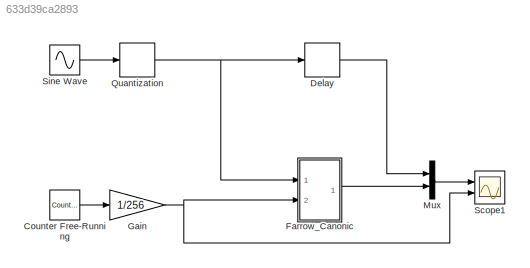
MODEL slx_633d39ca2893
KIND model
CONFIG AbsTol = auto
CONFIG EnableMultiTasking = off
CONFIG FixedStep = auto
CONFIG MaxStep = auto
CONFIG MinStep = auto
CONFIG RelTol = 1e-3
CONFIG SampleTimeConstraint = Unconstrained
CONFIG SolverName = VariableStepAuto
CONFIG StartTime = 0.0
CONFIG StopTime = 0.3
BLOCK [Reference] Counter Free-Running  REF=simulink/Sources/Counter
Free-Running
  Ports = [0, 1]
  SourceBlock = simulink/Sources/Counter\nFree-Running
  SourceProductBaseCode = SL
  SourceType = Counter Free-Running
BLOCK [Delay] Delay
  DelayLength = 3
  InitialCondition = 0
  InputPortMap = u0
  Ports = [1, 1]
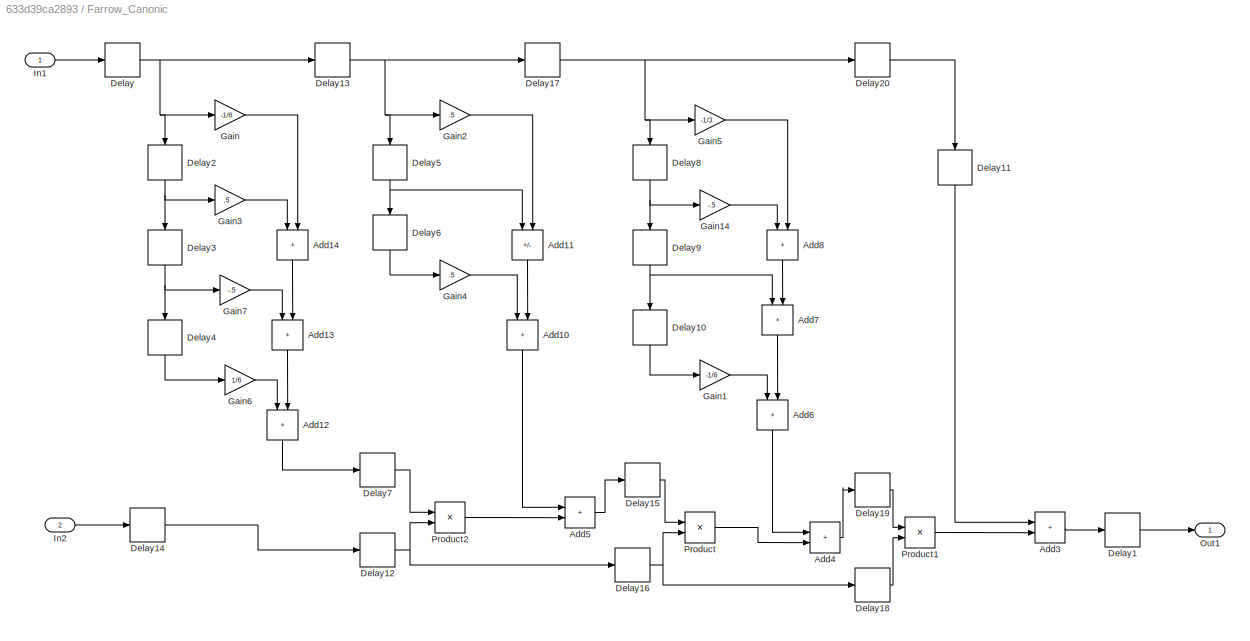
BLOCK [SubSystem] Farrow_Canonic
  Ports = [2, 1]
  RequestExecContextInheritance = off
BLOCK [Sum] Farrow_Canonic/Add10
  IconShape = rectangular
  NameLocation = left
  Ports = [2, 1]
BLOCK [Sum] Farrow_Canonic/Add11
  IconShape = rectangular
  Inputs = -+
  NameLocation = left
  Ports = [2, 1]
BLOCK [Sum] Farrow_Canonic/Add12
  IconShape = rectangular
  NameLocation = left
  OutDataTypeStr = fixdt(1,24,20)
  Ports = [2, 1]
BLOCK [Sum] Farrow_Canonic/Add13
  IconShape = rectangular
  NameLocation = left
  Ports = [2, 1]
BLOCK [Sum] Farrow_Canonic/Add14
  IconShape = rectangular
  NameLocation = left
  Ports = [2, 1]
BLOCK [Sum] Farrow_Canonic/Add3
  IconShape = rectangular
  OutDataTypeStr = fixdt(1,16,14)
  Ports = [2, 1]
  RndMeth = Round
BLOCK [Sum] Farrow_Canonic/Add4
  IconShape = rectangular
  OutDataTypeStr = Inherit: Same as first input
  Ports = [2, 1]
BLOCK [Sum] Farrow_Canonic/Add5
  IconShape = rectangular
  OutDataTypeStr = fixdt(1,24,20)
  Ports = [2, 1]
  RndMeth = Round
BLOCK [Sum] Farrow_Canonic/Add6
  IconShape = rectangular
  NameLocation = left
  OutDataTypeStr = fixdt(1,24,20)
  Ports = [2, 1]
BLOCK [Sum] Farrow_Canonic/Add7
  IconShape = rectangular
  NameLocation = left
  Ports = [2, 1]
BLOCK [Sum] Farrow_Canonic/Add8
  IconShape = rectangular
  NameLocation = left
  Ports = [2, 1]
BLOCK [Delay] Farrow_Canonic/Delay
  DelayLength = 1
  InitialCondition = 0
  InputPortMap = u0
  Ports = [1, 1]
BLOCK [Delay] Farrow_Canonic/Delay1
  DelayLength = 1
  InitialCondition = 0
  InputPortMap = u0
  Ports = [1, 1]
BLOCK [Delay] Farrow_Canonic/Delay10
  DelayLength = 1
  InitialCondition = 0
  InputPortMap = u0
  NameLocation = left
  Ports = [1, 1]
BLOCK [Delay] Farrow_Canonic/Delay11
  DelayLength = 1
  InitialCondition = 0
  InputPortMap = u0
  NameLocation = left
  Ports = [1, 1]
BLOCK [Delay] Farrow_Canonic/Delay12
  DelayLength = 1
  InitialCondition = 0
  InputPortMap = u0
  Ports = [1, 1]
BLOCK [Delay] Farrow_Canonic/Delay13
  DelayLength = 1
  InitialCondition = 0
  InputPortMap = u0
  Ports = [1, 1]
BLOCK [Delay] Farrow_Canonic/Delay14
  DelayLength = 1
  InitialCondition = 0
  InputPortMap = u0
  Ports = [1, 1]
BLOCK [Delay] Farrow_Canonic/Delay15
  DelayLength = 1
  InitialCondition = 0
  InputPortMap = u0
  Ports = [1, 1]
BLOCK [Delay] Farrow_Canonic/Delay16
  DelayLength = 1
  InitialCondition = 0
  InputPortMap = u0
  Ports = [1, 1]
BLOCK [Delay] Farrow_Canonic/Delay17
  DelayLength = 1
  InitialCondition = 0
  InputPortMap = u0
  Ports = [1, 1]
BLOCK [Delay] Farrow_Canonic/Delay18
  DelayLength = 1
  InitialCondition = 0
  InputPortMap = u0
  Ports = [1, 1]
BLOCK [Delay] Farrow_Canonic/Delay19
  DelayLength = 1
  InitialCondition = 0
  InputPortMap = u0
  Ports = [1, 1]
BLOCK [Delay] Farrow_Canonic/Delay2
  DelayLength = 1
  InitialCondition = 0
  InputPortMap = u0
  NameLocation = left
  Ports = [1, 1]
BLOCK [Delay] Farrow_Canonic/Delay20
  DelayLength = 1
  InitialCondition = 0
  InputPortMap = u0
  Ports = [1, 1]
BLOCK [Delay] Farrow_Canonic/Delay3
  DelayLength = 1
  InitialCondition = 0
  InputPortMap = u0
  NameLocation = left
  Ports = [1, 1]
BLOCK [Delay] Farrow_Canonic/Delay4
  DelayLength = 1
  InitialCondition = 0
  InputPortMap = u0
  NameLocation = left
  Ports = [1, 1]
BLOCK [Delay] Farrow_Canonic/Delay5
  DelayLength = 1
  InitialCondition = 0
  InputPortMap = u0
  NameLocation = left
  Ports = [1, 1]
BLOCK [Delay] Farrow_Canonic/Delay6
  DelayLength = 1
  InitialCondition = 0
  InputPortMap = u0
  NameLocation = left
  Ports = [1, 1]
BLOCK [Delay] Farrow_Canonic/Delay7
  DelayLength = 1
  InitialCondition = 0
  InputPortMap = u0
  Ports = [1, 1]
BLOCK [Delay] Farrow_Canonic/Delay8
  DelayLength = 1
  InitialCondition = 0
  InputPortMap = u0
  NameLocation = left
  Ports = [1, 1]
BLOCK [Delay] Farrow_Canonic/Delay9
  DelayLength = 1
  InitialCondition = 0
  InputPortMap = u0
  NameLocation = left
  Ports = [1, 1]
BLOCK [Gain] Farrow_Canonic/Gain
  Gain = -1/6
  OutDataTypeStr = fixdt(1,24,20)
  RndMeth = Round
BLOCK [Gain] Farrow_Canonic/Gain1
  Gain = -1/6
  OutDataTypeStr = fixdt(1,24,20)
  RndMeth = Round
BLOCK [Gain] Farrow_Canonic/Gain14
  Gain = -.5
  OutDataTypeStr = Inherit: Same as input
  RndMeth = Round
BLOCK [Gain] Farrow_Canonic/Gain2
  Gain = .5
  OutDataTypeStr = Inherit: Same as input
  RndMeth = Round
BLOCK [Gain] Farrow_Canonic/Gain3
  Gain = .5
  OutDataTypeStr = Inherit: Same as input
  RndMeth = Round
BLOCK [Gain] Farrow_Canonic/Gain4
  Gain = .5
  OutDataTypeStr = Inherit: Same as input
  RndMeth = Round
BLOCK [Gain] Farrow_Canonic/Gain5
  Gain = -1/3
  OutDataTypeStr = fixdt(1,24,20)
  RndMeth = Round
BLOCK [Gain] Farrow_Canonic/Gain6
  Gain = 1/6
  OutDataTypeStr = fixdt(1,24,20)
  RndMeth = Round
BLOCK [Gain] Farrow_Canonic/Gain7
  Gain = -.5
  OutDataTypeStr = Inherit: Same as input
  RndMeth = Round
BLOCK [Inport] Farrow_Canonic/In1
BLOCK [Inport] Farrow_Canonic/In2
  Port = 2
BLOCK [Outport] Farrow_Canonic/Out1
BLOCK [Product] Farrow_Canonic/Product
  OutDataTypeStr = Inherit: Same as first input
  Ports = [2, 1]
  RndMeth = Round
BLOCK [Product] Farrow_Canonic/Product1
  Ports = [2, 1]
BLOCK [Product] Farrow_Canonic/Product2
  OutDataTypeStr = Inherit: Same as first input
  Ports = [2, 1]
  RndMeth = Round
BLOCK [Gain] Gain
  Gain = 1/256
  OutDataTypeStr = fixdt(0,12,8)
BLOCK [Mux] Mux
  DisplayOption = bar
  Inputs = 2
  Ports = [2, 1]
BLOCK [DataTypeConversion] Quantization
  OutDataTypeStr = fixdt(1,16,14)
  RndMeth = Convergent
  SaturateOnIntegerOverflow = off
BLOCK [Scope] Scope1
  Floating = off
  NumInputPorts = 2
  Ports = [2]
  ScopeSpecificationString = Simulink.scopes.TimeScopeBlockCfg('CurrentConfiguration', extmgr.ConfigurationSet(extmgr.Configuration('Core','General UI',true),extmgr.Configuration('Core','Source UI',true),extmgr.Configuration('Sources','WiredSimulink',true,'DataLoggingVariableName','ScopeData1'),extmgr.Configuration('Visuals','Time Domain',true,'SerializedDisplays',{struct('MinYLimReal','-1.33311','MaxYLimReal','1.32997','YLab...<+2149ch>
BLOCK [Sin] Sine Wave
  Ports = [0, 1]
  SampleTime = .0001
  Samples = 32
  SineType = Sample based
LINE Counter Free-Running:1 -> Gain:1
LINE Delay:1 -> Mux:1
LINE Farrow_Canonic/Add10:1 -> Farrow_Canonic/Add5:1
LINE Farrow_Canonic/Add11:1 -> Farrow_Canonic/Add10:2
LINE Farrow_Canonic/Add12:1 -> Farrow_Canonic/Delay7:1
LINE Farrow_Canonic/Add13:1 -> Farrow_Canonic/Add12:2
LINE Farrow_Canonic/Add14:1 -> Farrow_Canonic/Add13:2
LINE Farrow_Canonic/Add3:1 -> Farrow_Canonic/Delay1:1
LINE Farrow_Canonic/Add4:1 -> Farrow_Canonic/Delay19:1
LINE Farrow_Canonic/Add5:1 -> Farrow_Canonic/Delay15:1
LINE Farrow_Canonic/Add6:1 -> Farrow_Canonic/Add4:1
LINE Farrow_Canonic/Add7:1 -> Farrow_Canonic/Add6:2
LINE Farrow_Canonic/Add8:1 -> Farrow_Canonic/Add7:2
LINE Farrow_Canonic/Delay10:1 -> Farrow_Canonic/Gain1:1
LINE Farrow_Canonic/Delay11:1 -> Farrow_Canonic/Add3:1
NET Farrow_Canonic/Delay12:1 -> Farrow_Canonic/Delay16:1, Farrow_Canonic/Product2:2
NET Farrow_Canonic/Delay13:1 -> Farrow_Canonic/Delay17:1, Farrow_Canonic/Delay5:1, Farrow_Canonic/Gain2:1
LINE Farrow_Canonic/Delay14:1 -> Farrow_Canonic/Delay12:1
LINE Farrow_Canonic/Delay15:1 -> Farrow_Canonic/Product:1
NET Farrow_Canonic/Delay16:1 -> Farrow_Canonic/Delay18:1, Farrow_Canonic/Product:2
NET Farrow_Canonic/Delay17:1 -> Farrow_Canonic/Delay20:1, Farrow_Canonic/Delay8:1, Farrow_Canonic/Gain5:1
LINE Farrow_Canonic/Delay18:1 -> Farrow_Canonic/Product1:2
LINE Farrow_Canonic/Delay19:1 -> Farrow_Canonic/Product1:1
LINE Farrow_Canonic/Delay1:1 -> Farrow_Canonic/Out1:1
LINE Farrow_Canonic/Delay20:1 -> Farrow_Canonic/Delay11:1
NET Farrow_Canonic/Delay2:1 -> Farrow_Canonic/Delay3:1, Farrow_Canonic/Gain3:1
NET Farrow_Canonic/Delay3:1 -> Farrow_Canonic/Delay4:1, Farrow_Canonic/Gain7:1
LINE Farrow_Canonic/Delay4:1 -> Farrow_Canonic/Gain6:1
NET Farrow_Canonic/Delay5:1 -> Farrow_Canonic/Add11:1, Farrow_Canonic/Delay6:1
LINE Farrow_Canonic/Delay6:1 -> Farrow_Canonic/Gain4:1
LINE Farrow_Canonic/Delay7:1 -> Farrow_Canonic/Product2:1
NET Farrow_Canonic/Delay8:1 -> Farrow_Canonic/Delay9:1, Farrow_Canonic/Gain14:1
NET Farrow_Canonic/Delay9:1 -> Farrow_Canonic/Add7:1, Farrow_Canonic/Delay10:1
NET Farrow_Canonic/Delay:1 -> Farrow_Canonic/Delay13:1, Farrow_Canonic/Delay2:1, Farrow_Canonic/Gain:1
LINE Farrow_Canonic/Gain14:1 -> Farrow_Canonic/Add8:1
LINE Farrow_Canonic/Gain1:1 -> Farrow_Canonic/Add6:1
LINE Farrow_Canonic/Gain2:1 -> Farrow_Canonic/Add11:2
LINE Farrow_Canonic/Gain3:1 -> Farrow_Canonic/Add14:1
LINE Farrow_Canonic/Gain4:1 -> Farrow_Canonic/Add10:1
LINE Farrow_Canonic/Gain5:1 -> Farrow_Canonic/Add8:2
LINE Farrow_Canonic/Gain6:1 -> Farrow_Canonic/Add12:1
LINE Farrow_Canonic/Gain7:1 -> Farrow_Canonic/Add13:1
LINE Farrow_Canonic/Gain:1 -> Farrow_Canonic/Add14:2
LINE Farrow_Canonic/In1:1 -> Farrow_Canonic/Delay:1
LINE Farrow_Canonic/In2:1 -> Farrow_Canonic/Delay14:1
LINE Farrow_Canonic/Product1:1 -> Farrow_Canonic/Add3:2
LINE Farrow_Canonic/Product2:1 -> Farrow_Canonic/Add5:2
LINE Farrow_Canonic/Product:1 -> Farrow_Canonic/Add4:2
LINE Farrow_Canonic:1 -> Mux:2
NET Gain:1 -> Farrow_Canonic:2, Scope1:2
LINE Mux:1 -> Scope1:1
NET Quantization:1 -> Delay:1, Farrow_Canonic:1
LINE Sine Wave:1 -> Quantization:1
note: NET lines group one-source signal fan-out (src -> all destinations, sorted); 1:1 wires keep LINE
